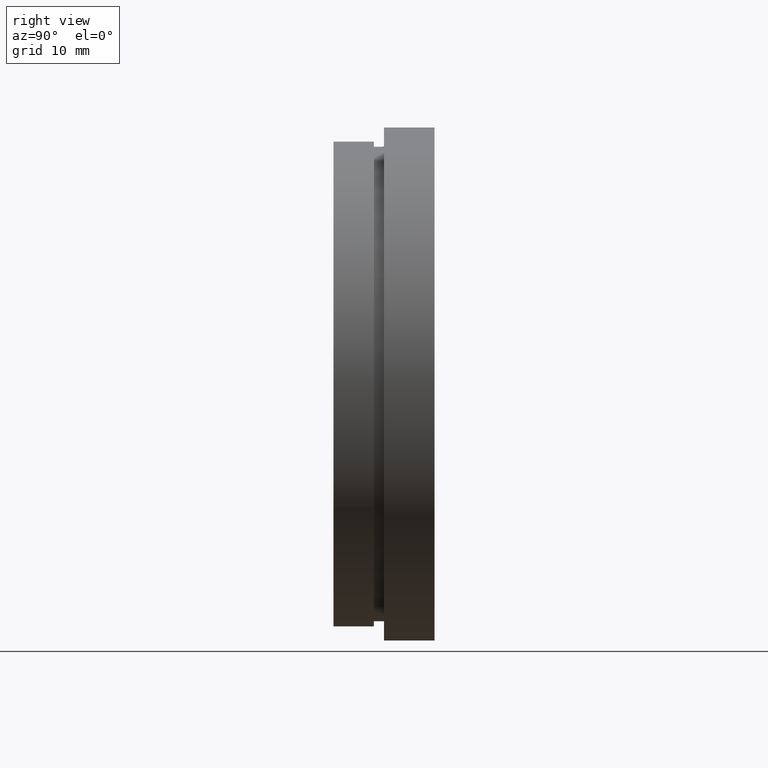
[diagram: clean part render]
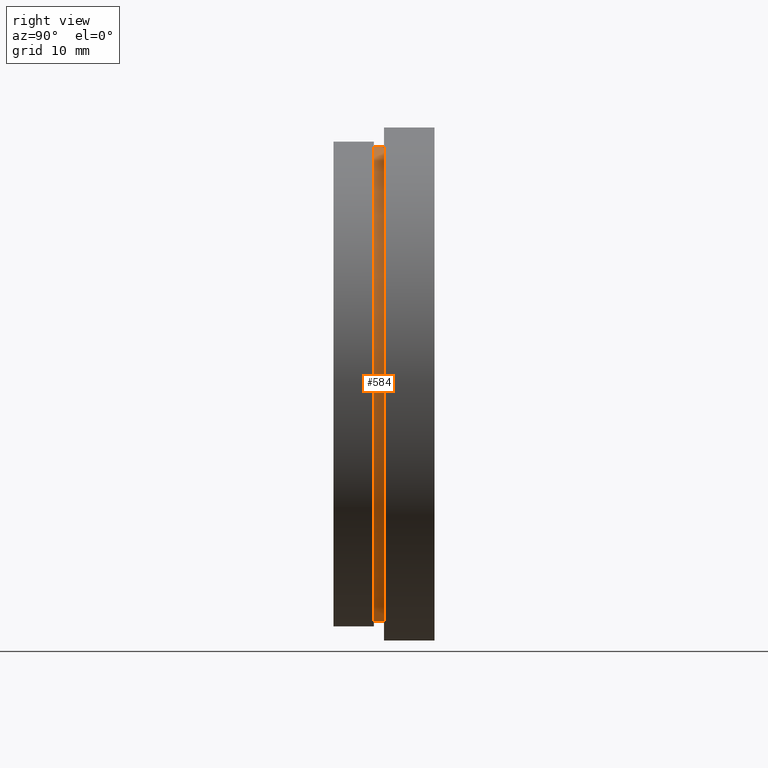
[diagram: same view with one face highlighted and labeled with its STEP entity id]
A machine part, right view. The second image highlights one B-rep face of the part: STEP entity #584.
In plain terms, the highlighted cylindrical surface (partial cylindrical patch) has radius 23.5 mm, axis along (-0, 1, -0).
Its self-contained STEP definition (entity closure, byte-faithful):
#20 = DIRECTION ( 'NONE',  ( -0.0000000000000000000, 1.000000000000000000, -0.0000000000000000000 ) ) ;
#49 = ORIENTED_EDGE ( 'NONE', *, *, #537, .F. ) ;
#63 = DIRECTION ( 'NONE',  ( -0.0000000000000000000, 1.000000000000000000, -0.0000000000000000000 ) ) ;
#75 = ORIENTED_EDGE ( 'NONE', *, *, #78, .T. ) ;
#78 = EDGE_CURVE ( 'NONE', #622, #327, #196, .T. ) ;
#102 = DIRECTION ( 'NONE',  ( -0.0000000000000000000, 1.000000000000000000, -0.0000000000000000000 ) ) ;
#106 = DIRECTION ( 'NONE',  ( 0.0000000000000000000, 0.0000000000000000000, 1.000000000000000000 ) ) ;
#129 = EDGE_LOOP ( 'NONE', ( #75, #328, #49, #457 ) ) ;
#131 = LINE ( 'NONE', #515, #265 ) ;
#149 = DIRECTION ( 'NONE',  ( 0.0000000000000000000, 0.0000000000000000000, 1.000000000000000000 ) ) ;
#171 = AXIS2_PLACEMENT_3D ( 'NONE', #617, #576, #149 ) ;
#190 = EDGE_CURVE ( 'NONE', #327, #621, #131, .T. ) ;
#196 = CIRCLE ( 'NONE', #317, 23.50000000000000000 ) ;
#224 = CARTESIAN_POINT ( 'NONE',  ( 0.0000000000000000000, 13.74468085106383300, 23.50000000000000000 ) ) ;
#265 = VECTOR ( 'NONE', #331, 1000.000000000000000 ) ;
#269 = CARTESIAN_POINT ( 'NONE',  ( 2.877919977996280300E-015, 4.000000000000000000, -23.50000000000000000 ) ) ;
#289 = CARTESIAN_POINT ( 'NONE',  ( 0.0000000000000000000, 5.000000000000000900, 23.50000000000000000 ) ) ;
#298 = CARTESIAN_POINT ( 'NONE',  ( 2.877919977996280300E-015, 5.000000000000000900, -23.50000000000000000 ) ) ;
#317 = AXIS2_PLACEMENT_3D ( 'NONE', #428, #63, #106 ) ;
#318 = CARTESIAN_POINT ( 'NONE',  ( 0.0000000000000000000, 4.000000000000000000, 23.50000000000000000 ) ) ;
#327 = VERTEX_POINT ( 'NONE', #269 ) ;
#328 = ORIENTED_EDGE ( 'NONE', *, *, #190, .T. ) ;
#331 = DIRECTION ( 'NONE',  ( -0.0000000000000000000, 1.000000000000000000, -0.0000000000000000000 ) ) ;
#375 = EDGE_CURVE ( 'NONE', #622, #512, #377, .T. ) ;
#377 = LINE ( 'NONE', #224, #510 ) ;
#389 = DIRECTION ( 'NONE',  ( 0.0000000000000000000, 0.0000000000000000000, 1.000000000000000000 ) ) ;
#428 = CARTESIAN_POINT ( 'NONE',  ( 0.0000000000000000000, 4.000000000000000000, 0.0000000000000000000 ) ) ;
#431 = CARTESIAN_POINT ( 'NONE',  ( 0.0000000000000000000, 5.000000000000000900, 0.0000000000000000000 ) ) ;
#457 = ORIENTED_EDGE ( 'NONE', *, *, #375, .F. ) ;
#510 = VECTOR ( 'NONE', #20, 1000.000000000000000 ) ;
#512 = VERTEX_POINT ( 'NONE', #289 ) ;
#515 = CARTESIAN_POINT ( 'NONE',  ( 2.877919977996280300E-015, 13.74468085106383300, -23.50000000000000000 ) ) ;
#537 = EDGE_CURVE ( 'NONE', #512, #621, #620, .T. ) ;
#554 = AXIS2_PLACEMENT_3D ( 'NONE', #431, #102, #389 ) ;
#576 = DIRECTION ( 'NONE',  ( -0.0000000000000000000, 1.000000000000000000, -0.0000000000000000000 ) ) ;
#577 = FACE_OUTER_BOUND ( 'NONE', #129, .T. ) ;
#584 = ADVANCED_FACE ( 'NONE', ( #577 ), #593, .T. ) ;
#593 = CYLINDRICAL_SURFACE ( 'NONE', #171, 23.50000000000000000 ) ;
#617 = CARTESIAN_POINT ( 'NONE',  ( 0.0000000000000000000, 13.74468085106383300, 0.0000000000000000000 ) ) ;
#620 = CIRCLE ( 'NONE', #554, 23.50000000000000000 ) ;
#621 = VERTEX_POINT ( 'NONE', #298 ) ;
#622 = VERTEX_POINT ( 'NONE', #318 ) ;